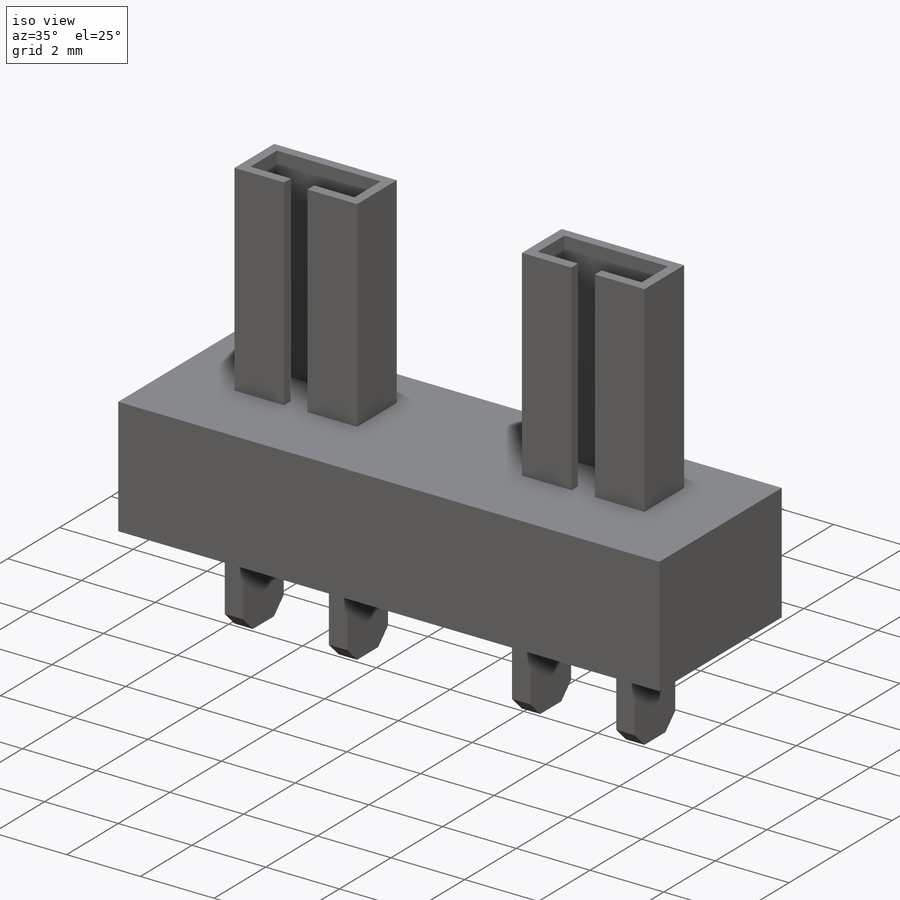
[diagram: iso view]
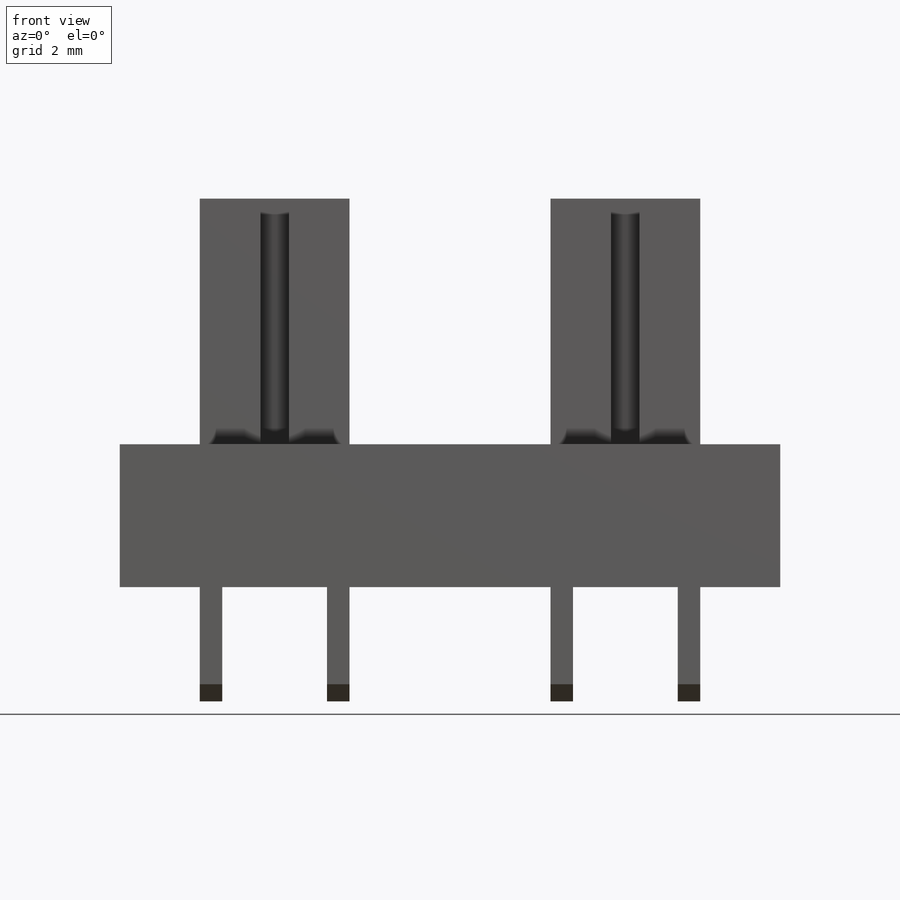
[diagram: front view]
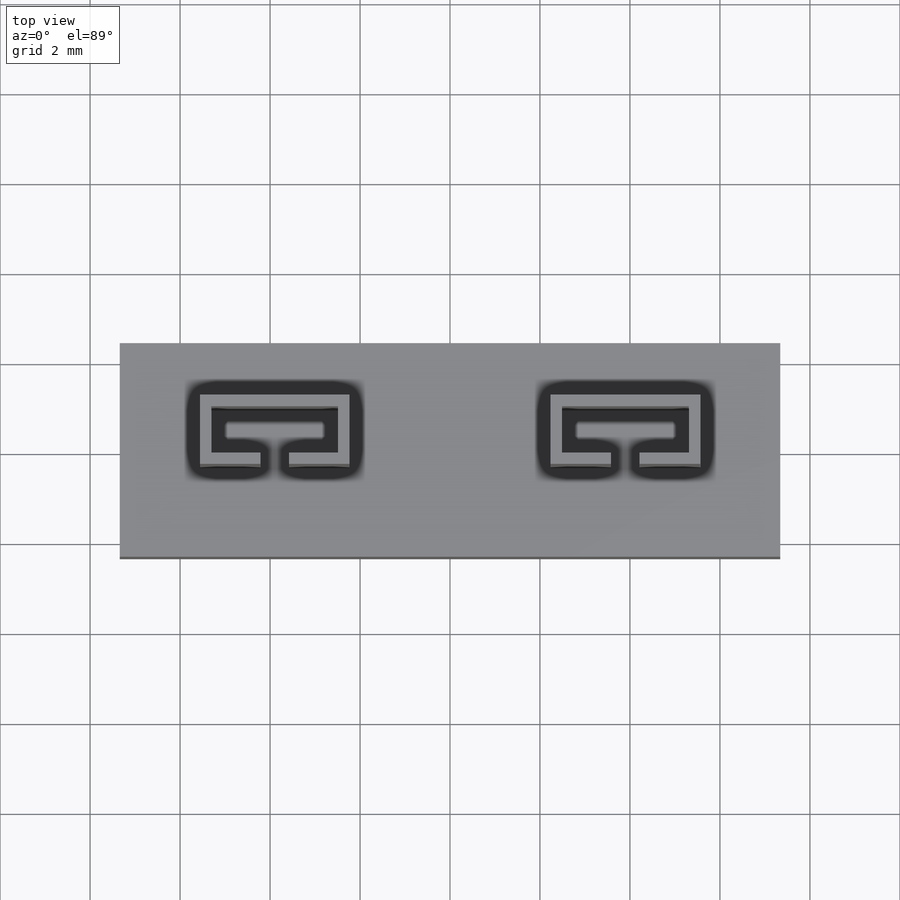
[diagram: top view]
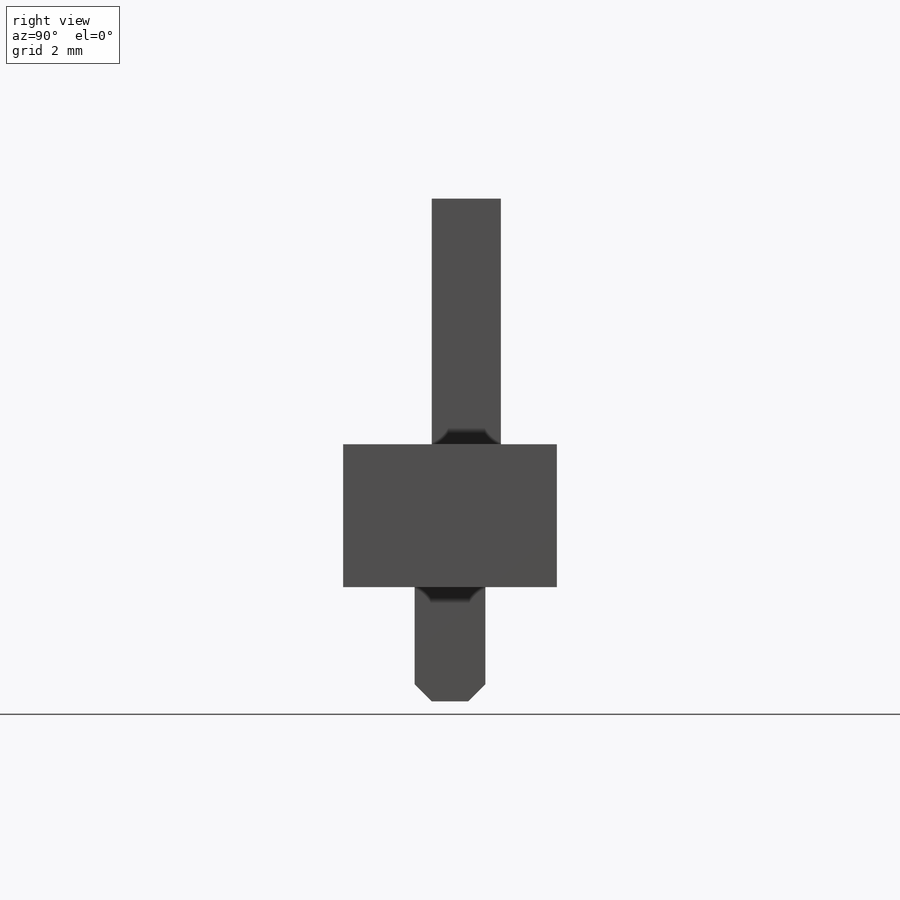
[diagram: right view]
SOLIDWORKS PART (.sldprt)
format: sldprt  version: not decoded by parser v0  size: 277,504 bytes
history: native  units: mm
features: sketch x5, extrude x3, material x1, chamfer x1 (+13 scaffold rows collapsed)
feature tree (23):
  scaffold x13  (default folders/planes/origin — collapsed)
  material  "Material <not specified>"
  sketch  "Sketch1"  dims[D1=3.175mm D2=14.6812mm]
  extrude  "Boss-Extrude1"  Depth=4.7498mm
  sketch  "Sketch2"  dims[c1.D1=1.4478mm c1.D2=0.5mm c1.D3=1.5748mm c1.D4=3.6576mm c2.D1=10.6244mm]
  extrude  "Boss-Extrude2"  Depth=2.54mm
  chamfer  "Chamfer1"  Distance=0.381mm Angle=45deg
  sketch  "Sketch3"  dims[c1.D1=1.2446mm c1.D5=0.381mm c1.D3=0.635mm c1.D4=8.128mm c1.D2=0.254mm c2.D3=0.3175mm c2.D4=0.3175mm c3.D4=2.0]
  extrude  "Boss-Extrude3"  Depth=5.461mm
  sketch  "Sketch4"  dims[D1=3.175mm]
  sketch  "Sketch5"
decode coverage: 8 of 9 modeling features carry decoded parameters
note: suppression state not decoded; provenance and decode notes live in map.json
